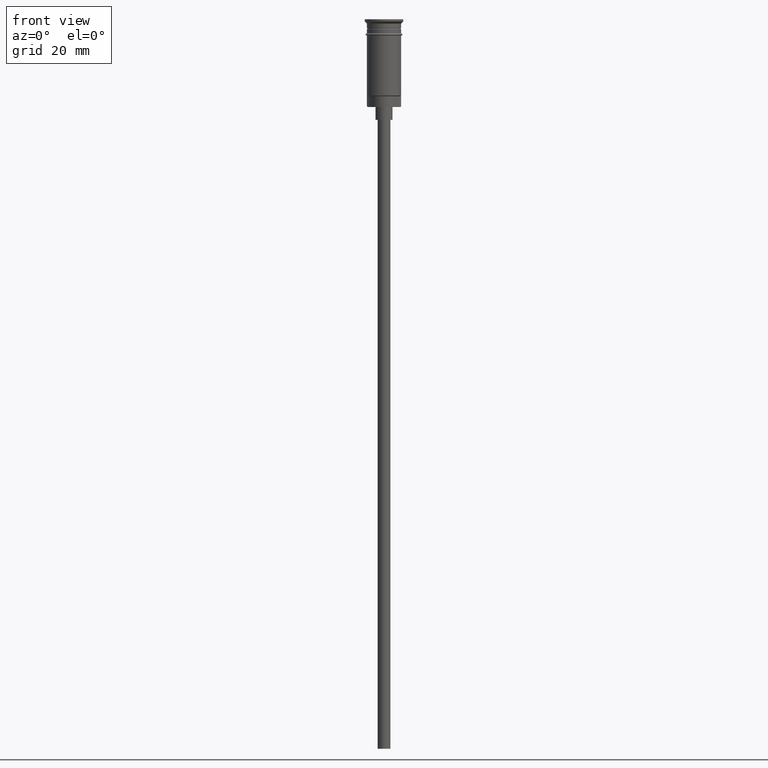
[diagram: clean part render]
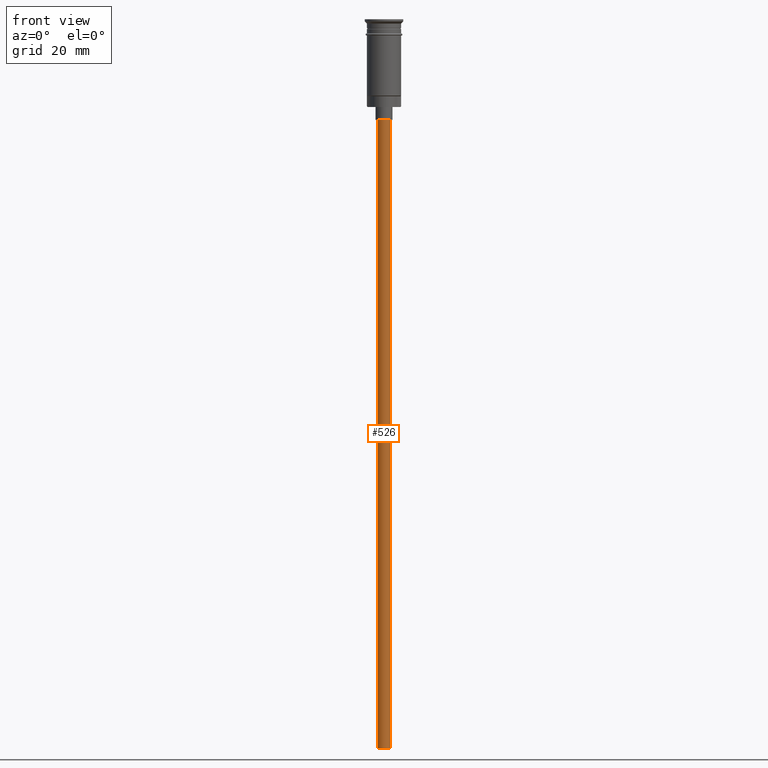
[diagram: same view with one face highlighted and labeled with its STEP entity id]
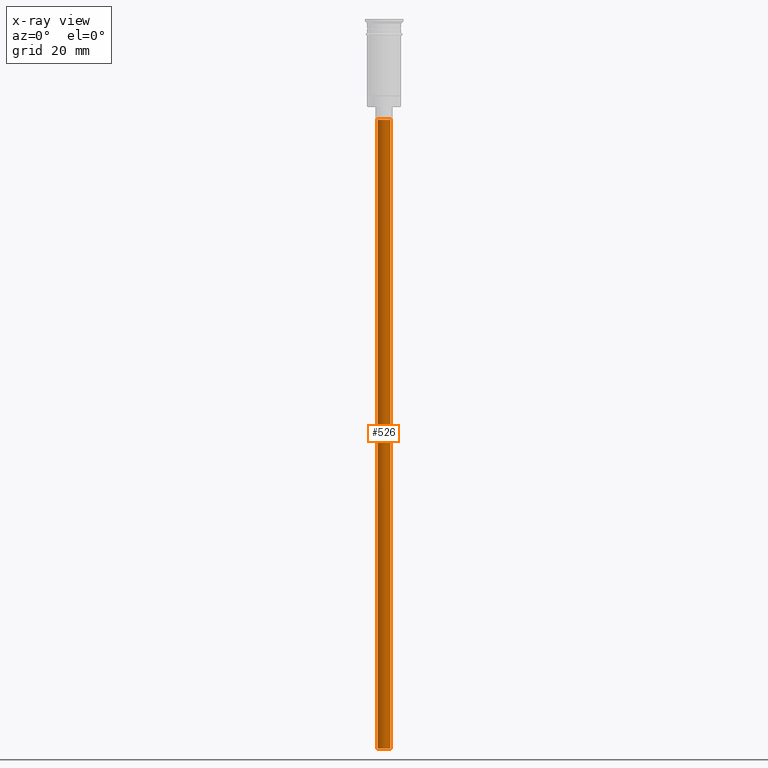
[diagram: x-ray of the same camera — body ghosted, the highlighted face saturated]
A machine part, front view. The second image highlights one B-rep face of the part: STEP entity #526.
The next image is the same camera in x-ray: the body ghosted, the highlighted face saturated — about 0% of this face is hidden behind the body in this view.
In plain terms, the highlighted cylindrical surface (edge-blend (fillet) strip) has radius 1.5 mm, axis along (-0, -0, 1).
Its self-contained STEP definition (entity closure, byte-faithful):
#24 = DIRECTION ( 'NONE',  ( 1.000000000000000000, 0.000000000000000000, 0.000000000000000000 ) ) ;
#40 = CARTESIAN_POINT ( 'NONE',  ( 1.500000000000000222, 0.000000000000000000, -170.4999999999999716 ) ) ;
#50 = CARTESIAN_POINT ( 'NONE',  ( 0.000000000000000000, 0.000000000000000000, -170.4999999999999716 ) ) ;
#111 = ORIENTED_EDGE ( 'NONE', *, *, #397, .T. ) ;
#165 = AXIS2_PLACEMENT_3D ( 'NONE', #50, #1207, #825 ) ;
#190 = ORIENTED_EDGE ( 'NONE', *, *, #718, .F. ) ;
#243 = VECTOR ( 'NONE', #621, 1000.000000000000000 ) ;
#263 = AXIS2_PLACEMENT_3D ( 'NONE', #1407, #300, #1174 ) ;
#293 = VERTEX_POINT ( 'NONE', #701 ) ;
#300 = DIRECTION ( 'NONE',  ( 0.000000000000000000, 0.000000000000000000, -1.000000000000000000 ) ) ;
#316 = CIRCLE ( 'NONE', #263, 1.500000000000000222 ) ;
#386 = VECTOR ( 'NONE', #1275, 1000.000000000000000 ) ;
#397 = EDGE_CURVE ( 'NONE', #1306, #1147, #316, .T. ) ;
#421 = CARTESIAN_POINT ( 'NONE',  ( -1.500000000000000222, 1.836970198721030181E-16, -170.4999999999999716 ) ) ;
#504 = EDGE_CURVE ( 'NONE', #293, #1147, #1530, .T. ) ;
#510 = CYLINDRICAL_SURFACE ( 'NONE', #1079, 1.500000000000000222 ) ;
#512 = EDGE_LOOP ( 'NONE', ( #1065, #190, #1419, #111 ) ) ;
#526 = ADVANCED_FACE ( 'NONE', ( #635 ), #510, .T. ) ;
#621 = DIRECTION ( 'NONE',  ( -0.000000000000000000, -0.000000000000000000, 1.000000000000000000 ) ) ;
#635 = FACE_OUTER_BOUND ( 'NONE', #512, .T. ) ;
#701 = CARTESIAN_POINT ( 'NONE',  ( -1.500000000000000222, 1.836970198721030181E-16, -170.4999999999999716 ) ) ;
#718 = EDGE_CURVE ( 'NONE', #1040, #293, #872, .T. ) ;
#825 = DIRECTION ( 'NONE',  ( -1.000000000000000000, 0.000000000000000000, 0.000000000000000000 ) ) ;
#872 = CIRCLE ( 'NONE', #165, 1.500000000000000222 ) ;
#976 = EDGE_CURVE ( 'NONE', #1040, #1306, #1143, .T. ) ;
#1040 = VERTEX_POINT ( 'NONE', #1392 ) ;
#1065 = ORIENTED_EDGE ( 'NONE', *, *, #504, .F. ) ;
#1079 = AXIS2_PLACEMENT_3D ( 'NONE', #1506, #1148, #24 ) ;
#1091 = CARTESIAN_POINT ( 'NONE',  ( 1.500000000000000222, 0.000000000000000000, -23.49999999999999645 ) ) ;
#1143 = LINE ( 'NONE', #40, #243 ) ;
#1147 = VERTEX_POINT ( 'NONE', #1418 ) ;
#1148 = DIRECTION ( 'NONE',  ( -0.000000000000000000, -0.000000000000000000, 1.000000000000000000 ) ) ;
#1174 = DIRECTION ( 'NONE',  ( -1.000000000000000000, 0.000000000000000000, 0.000000000000000000 ) ) ;
#1207 = DIRECTION ( 'NONE',  ( 0.000000000000000000, 0.000000000000000000, -1.000000000000000000 ) ) ;
#1275 = DIRECTION ( 'NONE',  ( -0.000000000000000000, -0.000000000000000000, 1.000000000000000000 ) ) ;
#1306 = VERTEX_POINT ( 'NONE', #1091 ) ;
#1392 = CARTESIAN_POINT ( 'NONE',  ( 1.500000000000000222, 0.000000000000000000, -170.4999999999999716 ) ) ;
#1407 = CARTESIAN_POINT ( 'NONE',  ( 0.000000000000000000, 0.000000000000000000, -23.49999999999999645 ) ) ;
#1418 = CARTESIAN_POINT ( 'NONE',  ( -1.500000000000000222, 1.836970198721030181E-16, -23.49999999999999645 ) ) ;
#1419 = ORIENTED_EDGE ( 'NONE', *, *, #976, .T. ) ;
#1506 = CARTESIAN_POINT ( 'NONE',  ( 0.000000000000000000, 0.000000000000000000, -170.4999999999999716 ) ) ;
#1530 = LINE ( 'NONE', #421, #386 ) ;